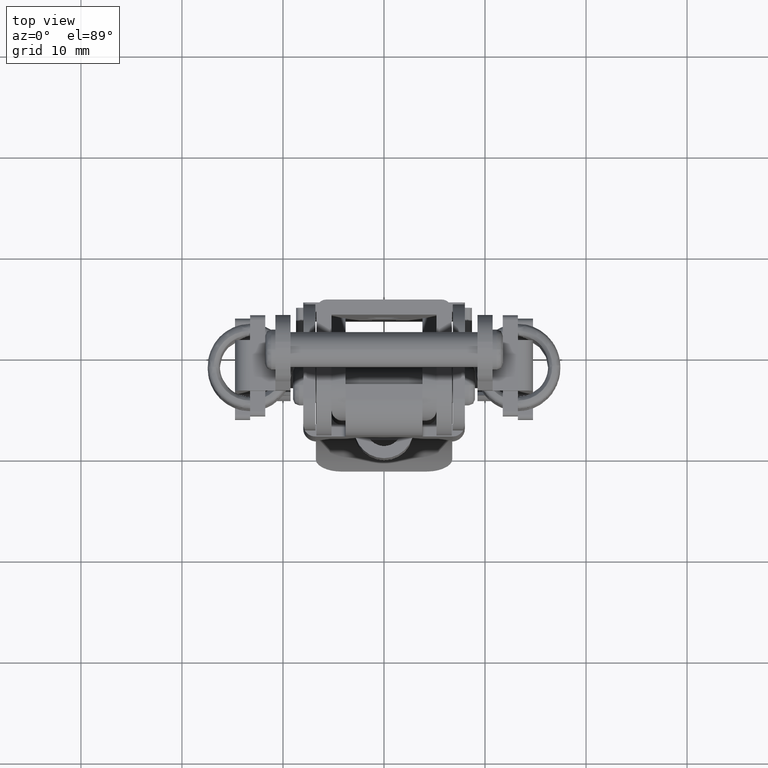
[diagram: clean part render]
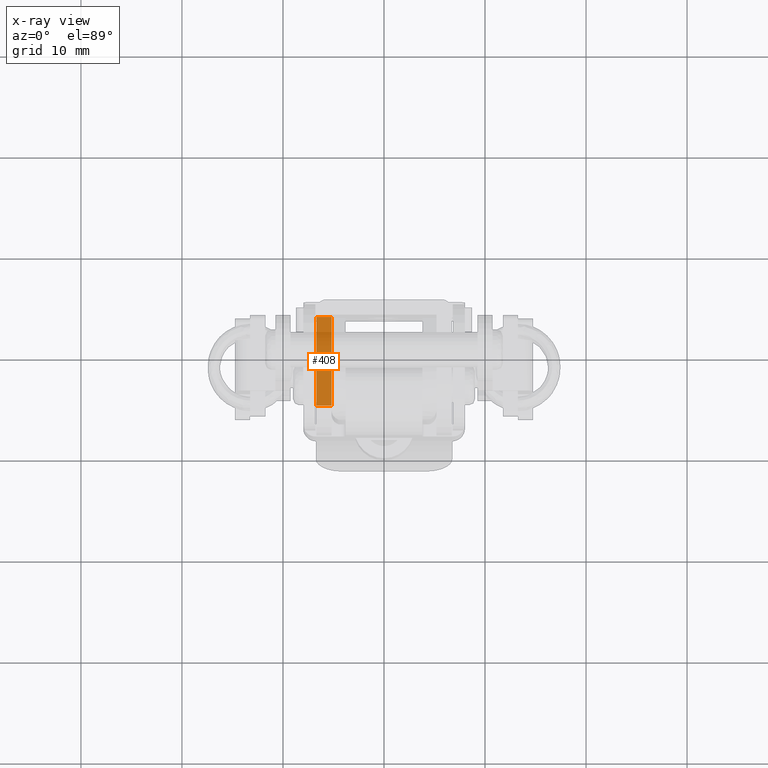
[diagram: x-ray — body ghosted, one internal face saturated and labeled with its STEP entity id]
A machine part, top view, then the same camera in x-ray: the body is ghosted and one INTERNAL B-rep face — a face not visible from any outside direction — is saturated and labeled: STEP entity #408.
In plain terms, the highlighted planar face has unit normal (0, 0.3909, 0.9204).
Its self-contained STEP definition (entity closure, byte-faithful):
#408=ADVANCED_FACE('',(#2043),#2042,.F.);
#2042=PLANE('',#5260);
#2043=FACE_OUTER_BOUND('',#5261,.T.);
#5257=CARTESIAN_POINT('',(-6.85000000000E+00,-6.14536157314E-01,-1.37389899900E+01));
#5258=DIRECTION('',(-0.00000000000E+00,3.90927685373E-01,9.20421395237E-01));
#5259=DIRECTION('',(0.00000000000E+00,-9.20421395237E-01,3.90927685373E-01));
#5260=AXIS2_PLACEMENT_3D('',#5257,#5258,#5259);
#5261=EDGE_LOOP('',(#8593,#8594,#8595,#8596));
#8593=ORIENTED_EDGE('',*,*,#10262,.T.);
#8594=ORIENTED_EDGE('',*,*,#10198,.F.);
#8595=ORIENTED_EDGE('',*,*,#10263,.F.);
#8596=ORIENTED_EDGE('',*,*,#10264,.T.);
#10198=EDGE_CURVE('',#13207,#13214,#13215,.T.);
#10262=EDGE_CURVE('',#13652,#13214,#13653,.T.);
#10263=EDGE_CURVE('',#13659,#13207,#13660,.T.);
#10264=EDGE_CURVE('',#13659,#13652,#13666,.T.);
#13207=VERTEX_POINT('',#18978);
#13214=VERTEX_POINT('',#18982);
#13215=LINE('',#18983,#18984);
#13652=VERTEX_POINT('',#19256);
#13653=LINE('',#19257,#19258);
#13659=VERTEX_POINT('',#19260);
#13660=LINE('',#19261,#19262);
#13666=LINE('',#19264,#19265);
#18978=CARTESIAN_POINT('',(-5.20000000000E+00,-1.50000000000E+00,-1.33629097160E+01));
#18982=CARTESIAN_POINT('',(-6.70000000000E+00,-1.50000000000E+00,-1.33629097160E+01));
#18983=CARTESIAN_POINT('',(-5.20000000000E+00,-1.50000000000E+00,-1.33629097160E+01));
#18984=VECTOR('',#18985,1.50000000000E+00);
#18985=DIRECTION('',(-1.00000000000E+00,0.00000000000E+00,0.00000000000E+00));
#19256=CARTESIAN_POINT('',(-6.70000000000E+00,-1.03546384269E+01,-9.60210697618E+00));
#19257=CARTESIAN_POINT('',(-6.70000000000E+00,-1.03546384269E+01,-9.60210697618E+00));
#19258=VECTOR('',#19259,9.62020056540E+00);
#19259=DIRECTION('',(0.00000000000E+00,9.20421395237E-01,-3.90927685373E-01));
#19260=CARTESIAN_POINT('',(-5.20000000000E+00,-1.03546384269E+01,-9.60210697618E+00));
#19261=CARTESIAN_POINT('',(-5.20000000000E+00,-1.03546384269E+01,-9.60210697618E+00));
#19262=VECTOR('',#19263,9.62020056540E+00);
#19263=DIRECTION('',(0.00000000000E+00,9.20421395237E-01,-3.90927685373E-01));
#19264=CARTESIAN_POINT('',(-5.20000000000E+00,-1.03546384269E+01,-9.60210697618E+00));
#19265=VECTOR('',#19266,1.50000000000E+00);
#19266=DIRECTION('',(-1.00000000000E+00,0.00000000000E+00,0.00000000000E+00));